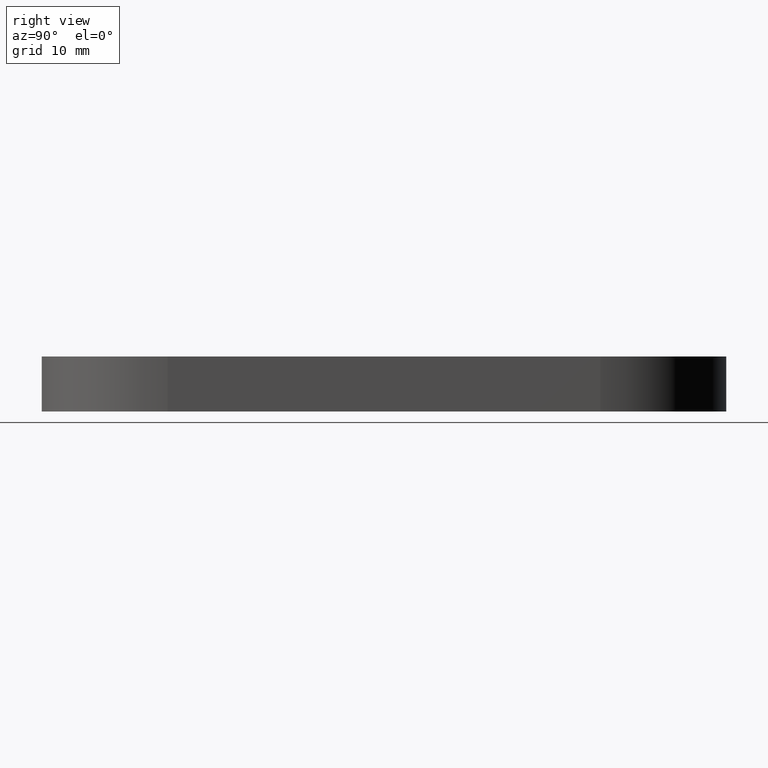
[diagram: clean part render]
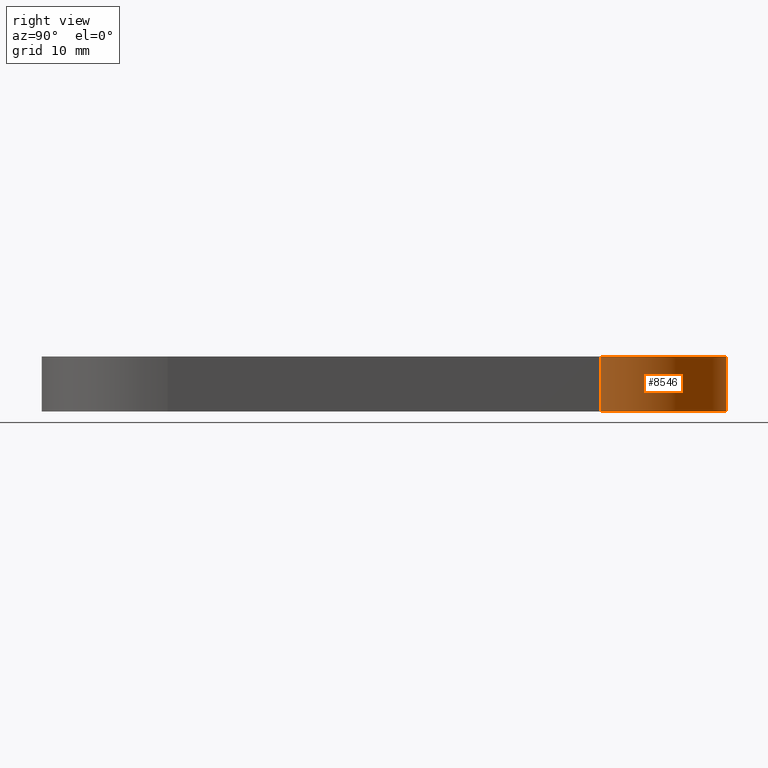
[diagram: same view with one face highlighted and labeled with its STEP entity id]
A machine part, right view. The second image highlights one B-rep face of the part: STEP entity #8546.
In plain terms, the highlighted cylindrical surface (partial cylindrical patch) has radius 16 mm, axis along (0, 0, -1).
Its self-contained STEP definition (entity closure, byte-faithful):
#31 = CYLINDRICAL_SURFACE ( 'NONE', #7947, 16.00000000000000000 ) ;
#166 = DIRECTION ( 'NONE',  ( 1.000000000000000000, 0.000000000000000000, 0.000000000000000000 ) ) ;
#947 = DIRECTION ( 'NONE',  ( -0.000000000000000000, 0.000000000000000000, 1.000000000000000000 ) ) ;
#1322 = VERTEX_POINT ( 'NONE', #9553 ) ;
#1411 = ORIENTED_EDGE ( 'NONE', *, *, #8068, .F. ) ;
#1691 = DIRECTION ( 'NONE',  ( 0.000000000000000000, -0.000000000000000000, -1.000000000000000000 ) ) ;
#1774 = CARTESIAN_POINT ( 'NONE',  ( -3.469446951953614189E-15, 27.49999999999998934, 7.000000000000000000 ) ) ;
#2183 = FACE_OUTER_BOUND ( 'NONE', #7255, .T. ) ;
#2238 = CARTESIAN_POINT ( 'NONE',  ( 15.99999999999999645, 27.49999999999999289, 7.000000000000000000 ) ) ;
#2841 = CIRCLE ( 'NONE', #8085, 16.00000000000000000 ) ;
#3030 = AXIS2_PLACEMENT_3D ( 'NONE', #9161, #947, #166 ) ;
#3231 = DIRECTION ( 'NONE',  ( 0.000000000000000000, 0.000000000000000000, -1.000000000000000000 ) ) ;
#3525 = CARTESIAN_POINT ( 'NONE',  ( 15.99999999999999645, 27.49999999999999289, 0.000000000000000000 ) ) ;
#3850 = CARTESIAN_POINT ( 'NONE',  ( 15.99999999999999645, 27.49999999999999289, 7.000000000000000000 ) ) ;
#3927 = CIRCLE ( 'NONE', #3030, 16.00000000000000000 ) ;
#3962 = CARTESIAN_POINT ( 'NONE',  ( -3.469446951953614189E-15, 27.49999999999998934, 0.000000000000000000 ) ) ;
#4613 = ORIENTED_EDGE ( 'NONE', *, *, #8903, .F. ) ;
#4799 = CARTESIAN_POINT ( 'NONE',  ( -3.469446951953614189E-15, 43.49999999999999289, 0.000000000000000000 ) ) ;
#5036 = DIRECTION ( 'NONE',  ( -1.000000000000000000, 0.000000000000000000, 0.000000000000000000 ) ) ;
#5116 = VECTOR ( 'NONE', #5589, 1000.000000000000000 ) ;
#5589 = DIRECTION ( 'NONE',  ( -0.000000000000000000, -0.000000000000000000, 1.000000000000000000 ) ) ;
#6977 = EDGE_CURVE ( 'NONE', #7605, #8679, #2841, .T. ) ;
#7039 = LINE ( 'NONE', #7366, #7547 ) ;
#7221 = ORIENTED_EDGE ( 'NONE', *, *, #9909, .F. ) ;
#7255 = EDGE_LOOP ( 'NONE', ( #1411, #7221, #4613, #8799 ) ) ;
#7366 = CARTESIAN_POINT ( 'NONE',  ( -3.469446951953614189E-15, 43.49999999999999289, 7.000000000000000000 ) ) ;
#7535 = LINE ( 'NONE', #3850, #5116 ) ;
#7547 = VECTOR ( 'NONE', #3231, 1000.000000000000000 ) ;
#7605 = VERTEX_POINT ( 'NONE', #4799 ) ;
#7947 = AXIS2_PLACEMENT_3D ( 'NONE', #1774, #9024, #5036 ) ;
#8068 = EDGE_CURVE ( 'NONE', #1322, #7605, #7039, .T. ) ;
#8085 = AXIS2_PLACEMENT_3D ( 'NONE', #3962, #1691, #9046 ) ;
#8546 = ADVANCED_FACE ( 'NONE', ( #2183 ), #31, .T. ) ;
#8679 = VERTEX_POINT ( 'NONE', #3525 ) ;
#8799 = ORIENTED_EDGE ( 'NONE', *, *, #6977, .F. ) ;
#8827 = VERTEX_POINT ( 'NONE', #2238 ) ;
#8903 = EDGE_CURVE ( 'NONE', #8679, #8827, #7535, .T. ) ;
#9024 = DIRECTION ( 'NONE',  ( 0.000000000000000000, 0.000000000000000000, -1.000000000000000000 ) ) ;
#9046 = DIRECTION ( 'NONE',  ( 1.000000000000000000, -8.673617379884035472E-16, 0.000000000000000000 ) ) ;
#9161 = CARTESIAN_POINT ( 'NONE',  ( -3.469446951953614189E-15, 27.49999999999998934, 7.000000000000000000 ) ) ;
#9553 = CARTESIAN_POINT ( 'NONE',  ( -3.469446951953614189E-15, 43.49999999999999289, 7.000000000000000000 ) ) ;
#9909 = EDGE_CURVE ( 'NONE', #8827, #1322, #3927, .T. ) ;